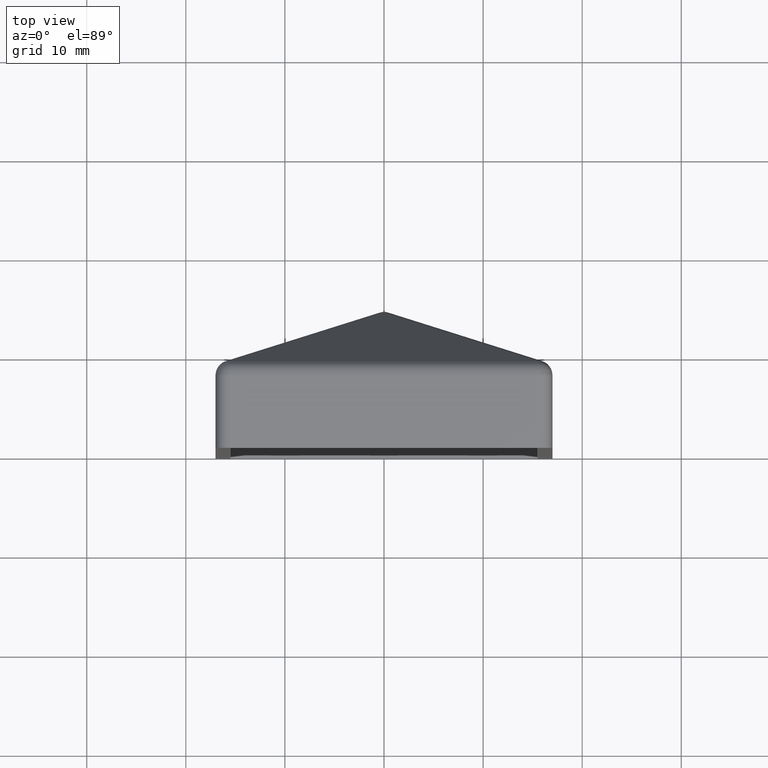
[diagram: clean part render]
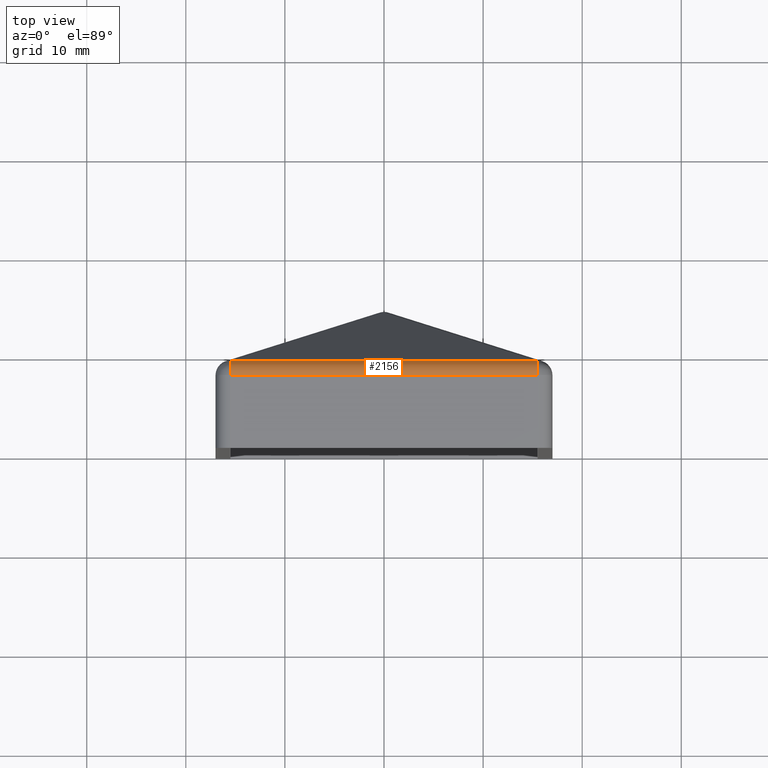
[diagram: same view with one face highlighted and labeled with its STEP entity id]
A machine part, top view. The second image highlights one B-rep face of the part: STEP entity #2156.
In plain terms, the highlighted cylindrical surface (edge-blend (fillet) strip) has radius 1.5 mm, axis along (1, -0, -0).
Its self-contained STEP definition (entity closure, byte-faithful):
#342 = DIRECTION ( 'NONE',  ( 0.000000000000000000, 0.000000000000000000, -1.000000000000000000 ) ) ;
#918 = EDGE_LOOP ( 'NONE', ( #4060, #9338, #9128, #3818 ) ) ;
#2156 = ADVANCED_FACE ( 'NONE', ( #7160 ), #2510, .T. ) ;
#2199 = EDGE_CURVE ( 'NONE', #10018, #10214, #3729, .T. ) ;
#2510 = CYLINDRICAL_SURFACE ( 'NONE', #6249, 1.500000000000001332 ) ;
#2948 = CARTESIAN_POINT ( 'NONE',  ( -17.00000000000000355, 7.350000000000001421, 32.00000000000000711 ) ) ;
#3670 = CIRCLE ( 'NONE', #8419, 1.500000000000001332 ) ;
#3729 = LINE ( 'NONE', #2948, #4071 ) ;
#3818 = ORIENTED_EDGE ( 'NONE', *, *, #7449, .T. ) ;
#4060 = ORIENTED_EDGE ( 'NONE', *, *, #2199, .T. ) ;
#4071 = VECTOR ( 'NONE', #5273, 1000.000000000000000 ) ;
#4565 = AXIS2_PLACEMENT_3D ( 'NONE', #13457, #13551, #7850 ) ;
#4989 = LINE ( 'NONE', #10572, #13710 ) ;
#5273 = DIRECTION ( 'NONE',  ( 1.000000000000000000, -0.000000000000000000, -0.000000000000000000 ) ) ;
#5817 = CARTESIAN_POINT ( 'NONE',  ( -17.00000000000000355, 7.350000000000001421, 30.50000000000000711 ) ) ;
#5900 = DIRECTION ( 'NONE',  ( 1.000000000000000000, -0.000000000000000000, -0.000000000000000000 ) ) ;
#5939 = CIRCLE ( 'NONE', #4565, 1.500000000000001332 ) ;
#6123 = EDGE_CURVE ( 'NONE', #10214, #9400, #5939, .T. ) ;
#6147 = DIRECTION ( 'NONE',  ( 0.000000000000000000, 0.000000000000000000, -1.000000000000000000 ) ) ;
#6249 = AXIS2_PLACEMENT_3D ( 'NONE', #5817, #9219, #342 ) ;
#7160 = FACE_OUTER_BOUND ( 'NONE', #918, .T. ) ;
#7449 = EDGE_CURVE ( 'NONE', #7591, #10018, #3670, .T. ) ;
#7591 = VERTEX_POINT ( 'NONE', #9637 ) ;
#7850 = DIRECTION ( 'NONE',  ( 0.000000000000000000, 0.000000000000000000, -1.000000000000000000 ) ) ;
#7983 = CARTESIAN_POINT ( 'NONE',  ( 15.50000000000001776, 8.770983202623920505, 30.98042349844764587 ) ) ;
#8419 = AXIS2_PLACEMENT_3D ( 'NONE', #12427, #5900, #6147 ) ;
#8821 = CARTESIAN_POINT ( 'NONE',  ( -15.49999999999999822, 7.350000000000001421, 32.00000000000000711 ) ) ;
#9128 = ORIENTED_EDGE ( 'NONE', *, *, #13266, .F. ) ;
#9219 = DIRECTION ( 'NONE',  ( 1.000000000000000000, -0.000000000000000000, -0.000000000000000000 ) ) ;
#9338 = ORIENTED_EDGE ( 'NONE', *, *, #6123, .T. ) ;
#9400 = VERTEX_POINT ( 'NONE', #7983 ) ;
#9637 = CARTESIAN_POINT ( 'NONE',  ( -15.50000000000000355, 8.770983202623920505, 30.98042349844764587 ) ) ;
#10018 = VERTEX_POINT ( 'NONE', #8821 ) ;
#10206 = CARTESIAN_POINT ( 'NONE',  ( 15.50000000000001066, 7.350000000000001421, 32.00000000000000711 ) ) ;
#10214 = VERTEX_POINT ( 'NONE', #10206 ) ;
#10572 = CARTESIAN_POINT ( 'NONE',  ( -17.00000000000000355, 8.770983202623922281, 30.98042349844764232 ) ) ;
#11488 = DIRECTION ( 'NONE',  ( 1.000000000000000000, -0.000000000000000000, -0.000000000000000000 ) ) ;
#12427 = CARTESIAN_POINT ( 'NONE',  ( -15.50000000000000000, 7.350000000000001421, 30.50000000000000711 ) ) ;
#13266 = EDGE_CURVE ( 'NONE', #7591, #9400, #4989, .T. ) ;
#13457 = CARTESIAN_POINT ( 'NONE',  ( 15.50000000000001776, 7.350000000000001421, 30.50000000000000711 ) ) ;
#13551 = DIRECTION ( 'NONE',  ( -1.000000000000000000, 0.000000000000000000, 0.000000000000000000 ) ) ;
#13710 = VECTOR ( 'NONE', #11488, 1000.000000000000000 ) ;